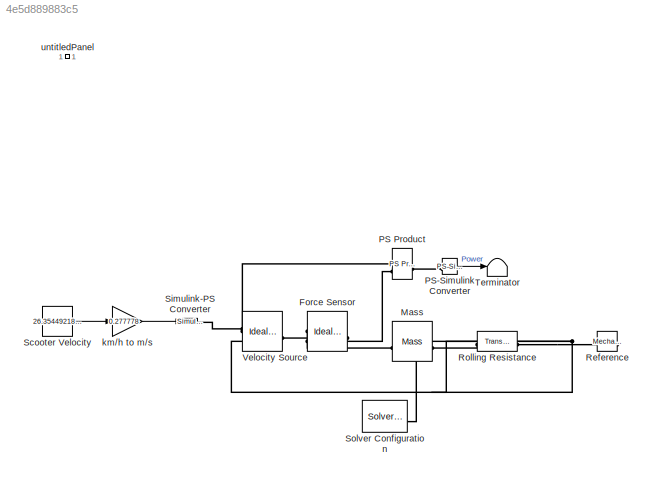
MODEL slx_4e5d889883c5
KIND model
CONFIG AbsTol = auto
CONFIG EnableMultiTasking = off
CONFIG FixedStep = auto
CONFIG MaxStep = auto
CONFIG MinStep = auto
CONFIG RelTol = 1e-3
CONFIG SampleTimeConstraint = Unconstrained
CONFIG SolverName = VariableStepAuto
CONFIG StartTime = 0.0
CONFIG StopTime = Inf
BLOCK [Reference] Force Sensor  REF=fl_lib/Mechanical/Mechanical Sensors/Ideal Force Sensor
  NameLocation = top
  SourceBlock = fl_lib/Mechanical/Mechanical Sensors/Ideal Force Sensor
  SourceType = Ideal Force Sensor
BLOCK [Reference] Mass  REF=fl_lib/Mechanical/Translational
Elements/Mass
  NameLocation = top
  SourceBlock = fl_lib/Mechanical/Translational\nElements/Mass
  SourceType = Mass
BLOCK [Reference] PS Product  REF=fl_lib/Physical Signals/Functions/PS Product
  SourceBlock = fl_lib/Physical Signals/Functions/PS Product
  SourceType = PS Product
BLOCK [Reference] PS-Simulink Converter  REF=nesl_utility/PS-Simulink
Converter
  SourceBlock = nesl_utility/PS-Simulink\nConverter
  SourceType = PS-Simulink\nConverter
BLOCK [Reference] Reference  REF=fl_lib/Mechanical/Translational
Elements/Mechanical
Translational
Reference
  NameLocation = top
  SourceBlock = fl_lib/Mechanical/Translational\nElements/Mechanical\nTranslational\nReference
  SourceType = Mechanical\nTranslational\nReference
BLOCK [Reference] Rolling Resistance  REF=fl_lib/Mechanical/Translational
Elements/Translational
Friction
  NameLocation = top
  SourceBlock = fl_lib/Mechanical/Translational\nElements/Translational\nFriction
  SourceType = Translational\nFriction
BLOCK [Constant] Scooter Velocity
  Value = 26.3544921875
BLOCK [Reference] Simulink-PS Converter  REF=nesl_utility/Simulink-PS
Converter
  SourceBlock = nesl_utility/Simulink-PS\nConverter
  SourceType = Simulink-PS\nConverter
BLOCK [Reference] Solver Configuration  REF=nesl_utility/Solver
Configuration
  SourceBlock = nesl_utility/Solver\nConfiguration
  SourceType = Solver\nConfiguration
BLOCK [Terminator] Terminator
BLOCK [Reference] Velocity Source  REF=fl_lib/Mechanical/Mechanical Sources/Ideal Translational
Velocity Source
  SourceBlock = fl_lib/Mechanical/Mechanical Sources/Ideal Translational\nVelocity Source
  SourceType = Ideal Translational\nVelocity Source
BLOCK [Gain] km//h to m//s
  Gain = 0.277778
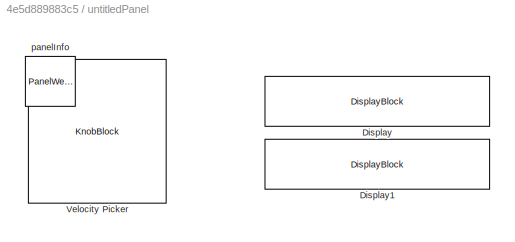
BLOCK [SubSystem] untitledPanel
  IsWebBlockPanel = on
  Tag = HiddenForWebPanel
BLOCK [DisplayBlock] untitledPanel/Display
  Alignment = Left
  Format = Custom
  FormatString = Power: %3.1f W
  LabelPosition = Hide
  Layout = Fill available space
  PanelInfo = {"height":57,"left":184,"panelId":"panelId-d0a485e7-f53d-4cca-bd4d-bce89a751458","top":83,"type":"panelChild","version":"2019b","width":252,"zIndex":1500006}
  Tag = HiddenForWebPanel
  Transparency = 1
BLOCK [DisplayBlock] untitledPanel/Display1
  Alignment = Left
  Format = Custom
  FormatString = Velocity: %3.1f km/h
  LabelPosition = Hide
  Layout = Fill available space
  PanelInfo = {"height":57,"left":185,"panelId":"panelId-d0a485e7-f53d-4cca-bd4d-bce89a751458","top":15,"type":"panelChild","version":"2019b","width":252,"zIndex":1500008}
  Tag = HiddenForWebPanel
  Transparency = 1
BLOCK [KnobBlock] untitledPanel/Velocity Picker
  LabelPosition = Bottom
  PanelInfo = {"height":119,"left":20,"panelId":"panelId-d0a485e7-f53d-4cca-bd4d-bce89a751458","top":21,"type":"panelChild","version":"2019b","width":154,"zIndex":1500002}
  ScaleMax = 30
  Tag = HiddenForWebPanel
  TickInterval = 5
BLOCK [PanelWebBlock] untitledPanel/panelInfo
  PanelInfo = {"compacted":false,"height":159,"isActiveTab":true,"labels":{},"left":44,"name":"Panel","panelId":"panelId-d0a485e7-f53d-4cca-bd4d-bce89a751458","tabIndex":0,"tabbedSetId":"tabbedSet6955295497","top":20,"type":"panel","version":"2019b","visible":true,"width":457,"zIndex":1500002}
  PanelSnapshot = iVBORw0KGgoAAAANSUhEUgAAA28AAAE+CAYAAAAagiiHAAAACXBIWXMAABYlAAAWJQFJUiTwAAAgAElEQVR4nOzdd3xUVd4/8M+dXpLMpIf0SkgIoQuIQECkVyvLs7q6gGWVBV3XBdZH/bk+rhVBVBAUV1GBVRRRUES6lFAEQk1CEtJ7LzOTzNz7+4NNlkAqmTTyeb9eeWHuPXPumcLufDjnfo+QJUknQERERERERF2WqarKVdbZgyAiIiIiIqKmqTWaUoY3IiIiIiKiLk4mk1kZ3oiIiIiIiLoBhjciIiIiIqJugOGNiIiIiIioG2B4IyIiIiIi6gYY3oiIiIiIiLoBhjciIiIiIqJugOGNiIiIiIioG2B4IyIiIiIi6gYY3oiIiIiIiLoBhjci...<+33344ch>
  Tag = HiddenForWebPanel
LINE PS-Simulink Converter:1 -> Terminator:1
LINE Scooter Velocity:1 -> km//h to m//s:1
LINE km//h to m//s:1 -> Simulink-PS Converter:1
PLINE Force Sensor:LConn1 -- Velocity Source:LConn1
PLINE Force Sensor:RConn1 -- Mass:RConn1
PLINE Force Sensor:RConn2 -- PS Product:LConn2
PLINE Mass:LConn1 -- Rolling Resistance:LConn1
PNET net1: PS Product:LConn1 -- Simulink-PS Converter:RConn1 -- Velocity Source:RConn1
PLINE PS Product:RConn1 -- PS-Simulink Converter:LConn1
PNET net2: Reference:LConn1 -- Rolling Resistance:RConn1 -- Solver Configuration:RConn1 -- Velocity Source:RConn2
note: PNET lines group multi-terminal physical nets as a canonical sorted terminal list (undirected conserving connections); 2-terminal nets keep the pairwise PLINE form
